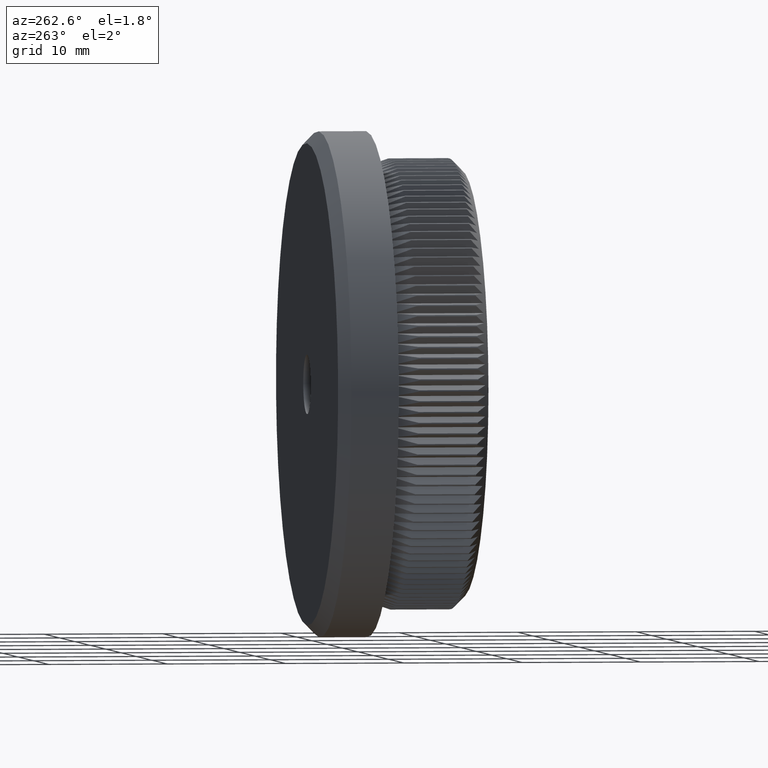
[diagram: clean part render]
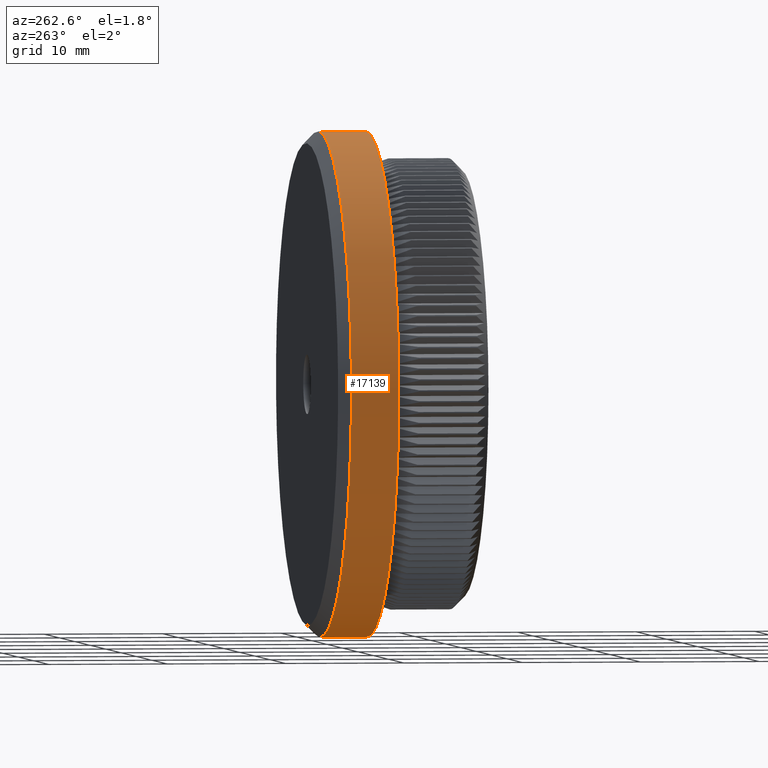
[diagram: same view with one face highlighted and labeled with its STEP entity id]
A machine part, auxiliary view. The second image highlights one B-rep face of the part: STEP entity #17139.
In plain terms, the highlighted cylindrical surface (partial cylindrical patch) has radius 21.2 mm, axis along (-0, -1, -0).
Its self-contained STEP definition (entity closure, byte-faithful):
#114 = EDGE_CURVE ( 'NONE', #24339, #22172, #17891, .T. ) ;
#582 = ORIENTED_EDGE ( 'NONE', *, *, #30294, .F. ) ;
#662 = VERTEX_POINT ( 'NONE', #12788 ) ;
#1389 = EDGE_LOOP ( 'NONE', ( #24847, #26817, #28409, #582 ) ) ;
#2256 = CARTESIAN_POINT ( 'NONE',  ( 0.0000000000000000000, 11.99999999999999800, 0.0000000000000000000 ) ) ;
#2312 = CYLINDRICAL_SURFACE ( 'NONE', #10847, 21.19999999999999900 ) ;
#8888 = CARTESIAN_POINT ( 'NONE',  ( 0.0000000000000000000, 8.000000000000000000, -21.19999999999999900 ) ) ;
#9348 = FACE_OUTER_BOUND ( 'NONE', #1389, .T. ) ;
#10847 = AXIS2_PLACEMENT_3D ( 'NONE', #20441, #29811, #29714 ) ;
#11558 = DIRECTION ( 'NONE',  ( -0.0000000000000000000, -1.000000000000000000, -0.0000000000000000000 ) ) ;
#12060 = DIRECTION ( 'NONE',  ( -0.0000000000000000000, -1.000000000000000000, -0.0000000000000000000 ) ) ;
#12105 = CARTESIAN_POINT ( 'NONE',  ( 0.0000000000000000000, 11.99999999999999800, -21.19999999999999900 ) ) ;
#12268 = CARTESIAN_POINT ( 'NONE',  ( 0.0000000000000000000, 0.0000000000000000000, -21.19999999999999900 ) ) ;
#12443 = DIRECTION ( 'NONE',  ( -0.0000000000000000000, -1.000000000000000000, -0.0000000000000000000 ) ) ;
#12788 = CARTESIAN_POINT ( 'NONE',  ( 2.596251214192388800E-015, 8.000000000000000000, 21.19999999999999900 ) ) ;
#14127 = DIRECTION ( 'NONE',  ( 0.0000000000000000000, 0.0000000000000000000, -1.000000000000000000 ) ) ;
#14791 = AXIS2_PLACEMENT_3D ( 'NONE', #28065, #28163, #14127 ) ;
#15188 = EDGE_CURVE ( 'NONE', #24339, #662, #23629, .T. ) ;
#15279 = LINE ( 'NONE', #12268, #30415 ) ;
#16315 = EDGE_CURVE ( 'NONE', #22172, #25524, #15279, .T. ) ;
#17139 = ADVANCED_FACE ( 'NONE', ( #9348 ), #2312, .T. ) ;
#17681 = VECTOR ( 'NONE', #12443, 1000.000000000000000 ) ;
#17891 = CIRCLE ( 'NONE', #18100, 21.19999999999999900 ) ;
#18100 = AXIS2_PLACEMENT_3D ( 'NONE', #2256, #11558, #28064 ) ;
#20441 = CARTESIAN_POINT ( 'NONE',  ( 0.0000000000000000000, 0.0000000000000000000, 0.0000000000000000000 ) ) ;
#22172 = VERTEX_POINT ( 'NONE', #12105 ) ;
#22650 = CIRCLE ( 'NONE', #14791, 21.19999999999999900 ) ;
#23629 = LINE ( 'NONE', #28843, #17681 ) ;
#24339 = VERTEX_POINT ( 'NONE', #25854 ) ;
#24847 = ORIENTED_EDGE ( 'NONE', *, *, #15188, .F. ) ;
#25524 = VERTEX_POINT ( 'NONE', #8888 ) ;
#25854 = CARTESIAN_POINT ( 'NONE',  ( 2.596251214192388800E-015, 11.99999999999999800, 21.19999999999999900 ) ) ;
#26817 = ORIENTED_EDGE ( 'NONE', *, *, #114, .T. ) ;
#28064 = DIRECTION ( 'NONE',  ( 0.0000000000000000000, 0.0000000000000000000, 1.000000000000000000 ) ) ;
#28065 = CARTESIAN_POINT ( 'NONE',  ( 0.0000000000000000000, 8.000000000000000000, 0.0000000000000000000 ) ) ;
#28163 = DIRECTION ( 'NONE',  ( -0.0000000000000000000, -1.000000000000000000, -0.0000000000000000000 ) ) ;
#28409 = ORIENTED_EDGE ( 'NONE', *, *, #16315, .T. ) ;
#28843 = CARTESIAN_POINT ( 'NONE',  ( 2.596251214192388800E-015, 0.0000000000000000000, 21.19999999999999900 ) ) ;
#29714 = DIRECTION ( 'NONE',  ( 0.0000000000000000000, 0.0000000000000000000, -1.000000000000000000 ) ) ;
#29811 = DIRECTION ( 'NONE',  ( -0.0000000000000000000, -1.000000000000000000, -0.0000000000000000000 ) ) ;
#30294 = EDGE_CURVE ( 'NONE', #662, #25524, #22650, .T. ) ;
#30415 = VECTOR ( 'NONE', #12060, 1000.000000000000000 ) ;